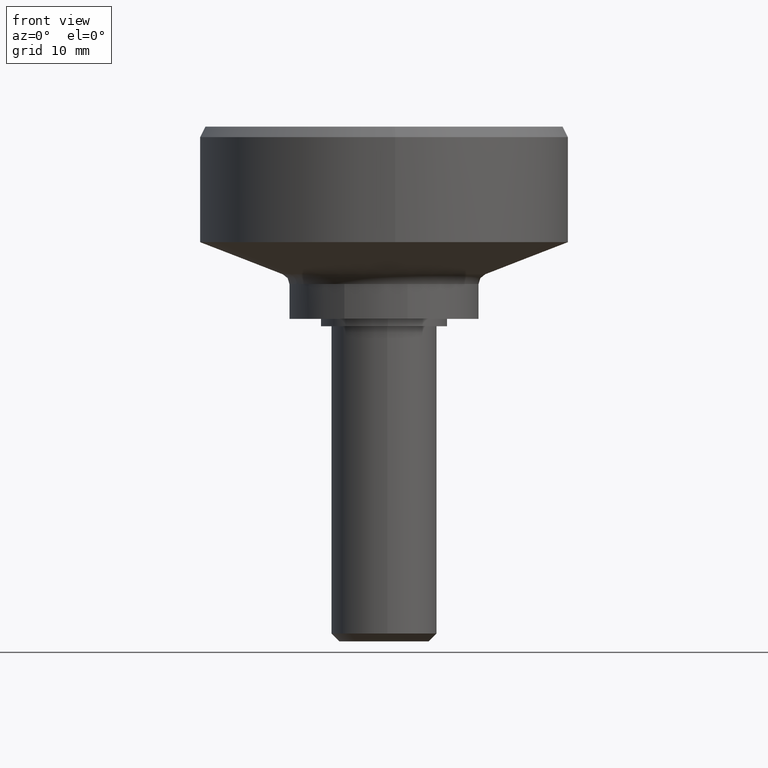
[diagram: clean part render]
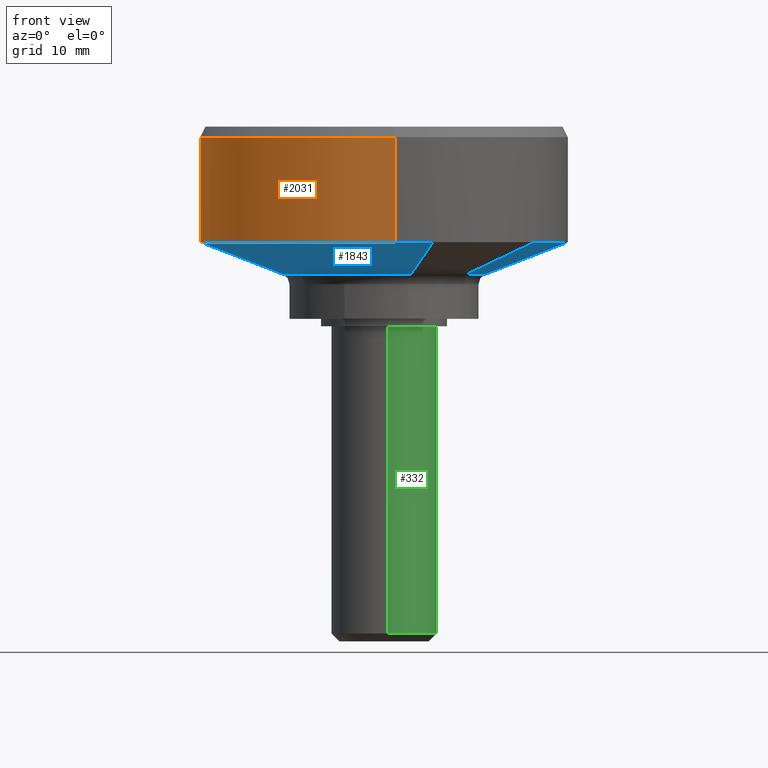
[diagram: same view with three faces highlighted in distinct colors, each labeled with its STEP entity id]
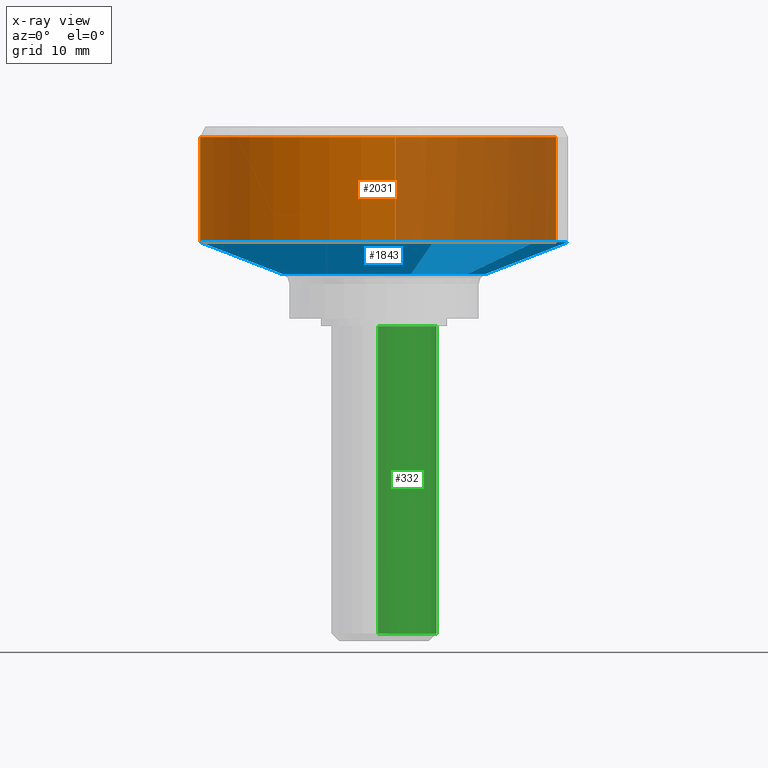
[diagram: x-ray of the same camera — body ghosted, the three highlighted faces saturated]
A machine part, front view with three faces highlighted in distinct colors.
The next image is the same camera in x-ray (body ghosted, the three faces saturated) — at least one of them is partly hidden behind the body in this view.
Their STEP definitions:

[orange] entity #2031 — the highlighted face is a freeform B-spline surface patch.
#1779=CARTESIAN_POINT('',(1.068336638387407,-17.467359755467179,8.0));
#1780=VERTEX_POINT('',#1779);
#1794=CARTESIAN_POINT('',(-17.500000000000000,0.0,8.0));
#1795=VERTEX_POINT('',#1794);
#1796=CARTESIAN_POINT('',(1.068336638387407,-17.467359755467175,8.0));
#1797=CARTESIAN_POINT('',(0.534666938039526,-17.499999999999996,8.0));
#1798=CARTESIAN_POINT('',(0.0,-17.500000000000000,8.0));
#1799=CARTESIAN_POINT('',(-17.499999999999996,-17.499999999999996,8.0));
#1800=CARTESIAN_POINT('',(-17.500000000000000,0.0,8.0));
#1808=(BOUNDED_CURVE()B_SPLINE_CURVE(2,(#1796,#1797,#1798,#1799,#1800),.UNSPECIFIED.,.F.,.U.)B_SPLINE_CURVE_WITH_KNOTS((3,2,3),(0.739333088717774,0.750000000000000,1.0),.UNSPECIFIED.)CURVE()GEOMETRIC_REPRESENTATION_ITEM()RATIONAL_B_SPLINE_CURVE((0.976072312735079,0.987502936079005,1.0,0.707106781186548,1.0))REPRESENTATION_ITEM(''));
#1809=EDGE_CURVE('',#1780,#1795,#1808,.T.);
#1811=CARTESIAN_POINT('',(16.382515417201041,6.153307127480902,8.0));
#1812=VERTEX_POINT('',#1811);
#1813=CARTESIAN_POINT('',(-17.500000000000000,0.0,8.0));
#1814=CARTESIAN_POINT('',(-17.499999999999996,17.499999999999996,8.0));
#1815=CARTESIAN_POINT('',(0.0,17.500000000000000,8.0));
#1816=CARTESIAN_POINT('',(12.120673792289830,17.499999999999996,8.0));
#1817=CARTESIAN_POINT('',(16.382515417201038,6.153307127480904,8.0));
#1825=(BOUNDED_CURVE()B_SPLINE_CURVE(2,(#1813,#1814,#1815,#1816,#1817),.UNSPECIFIED.,.F.,.U.)B_SPLINE_CURVE_WITH_KNOTS((3,2,3),(0.0,0.250000000000000,0.440284242480029),.UNSPECIFIED.)CURVE()GEOMETRIC_REPRESENTATION_ITEM()RATIONAL_B_SPLINE_CURVE((1.0,0.707106781186548,1.0,0.777068142922179,0.893499642234113))REPRESENTATION_ITEM(''));
#1826=EDGE_CURVE('',#1795,#1812,#1825,.T.);
#1907=CARTESIAN_POINT('',(16.382515411358451,6.153307143036193,18.000000000000039));
#1908=VERTEX_POINT('',#1907);
#1924=CARTESIAN_POINT('',(1.068349441870334,-17.467358972382979,17.999999999996440));
#1925=VERTEX_POINT('',#1924);
#1939=CARTESIAN_POINT('',(1.068349441870334,-17.467358972382979,17.999999999996440));
#1940=CARTESIAN_POINT('',(1.068336638387407,-17.467359755467179,8.0));
#1941=QUASI_UNIFORM_CURVE('',1,(#1939,#1940),.UNSPECIFIED.,.F.,.U.);
#1942=EDGE_CURVE('',#1925,#1780,#1941,.T.);
#1948=CARTESIAN_POINT('',(16.382515411358451,6.153307143036193,18.000000000000039));
#1949=CARTESIAN_POINT('',(16.382515417201041,6.153307127480902,8.0));
#1950=QUASI_UNIFORM_CURVE('',1,(#1948,#1949),.UNSPECIFIED.,.F.,.U.);
#1951=EDGE_CURVE('',#1908,#1812,#1950,.T.);
#1956=CARTESIAN_POINT('',(1.068349441859998,-17.467358972382669,18.250000000000000));
#1957=CARTESIAN_POINT('',(-16.399009530522669,-18.535708414242670,18.250000000000011));
#1958=CARTESIAN_POINT('',(-17.467358972382669,-1.068349441859998,18.250000000000000));
#1959=CARTESIAN_POINT('',(-18.535708414242670,16.399009530522669,18.250000000000011));
#1960=CARTESIAN_POINT('',(-1.068349441859998,17.467358972382669,18.250000000000000));
#1961=CARTESIAN_POINT('',(11.836467681553643,18.256651400213478,18.250000000000007));
#1962=CARTESIAN_POINT('',(16.382512628591503,6.153314551852513,18.250000000000000));
#1963=CARTESIAN_POINT('',(1.068349441859998,-17.467358972382669,7.743750000000000));
#1964=CARTESIAN_POINT('',(-16.399009530522669,-18.535708414242670,7.743750000000000));
#1965=CARTESIAN_POINT('',(-17.467358972382669,-1.068349441859998,7.743750000000000));
#1966=CARTESIAN_POINT('',(-18.535708414242670,16.399009530522669,7.743750000000000));
#1967=CARTESIAN_POINT('',(-1.068349441859998,17.467358972382669,7.743750000000000));
#1968=CARTESIAN_POINT('',(11.836467681553643,18.256651400213478,7.743750000000000));
#1969=CARTESIAN_POINT('',(16.382512628591503,6.153314551852513,7.743750000000000));
#1977=(BOUNDED_SURFACE()B_SPLINE_SURFACE(2,1,((#1956,#1963),(#1957,#1964),(#1958,#1965),(#1959,#1966),(#1960,#1967),(#1961,#1968),(#1962,#1969)),.UNSPECIFIED.,.F.,.F.,.U.)B_SPLINE_SURFACE_WITH_KNOTS((3,2,2,3),(2,2),(0.0,28.994949366116639,57.989898732233293,81.185858225126594),(0.0,10.506250000000010),.UNSPECIFIED.)GEOMETRIC_REPRESENTATION_ITEM()RATIONAL_B_SPLINE_SURFACE(((1.0,1.0),(0.707106781186548,0.707106781186548),(1.0,1.0),(0.707106781186548,0.707106781186548),(1.0,1.0),(0.765685424949238,0.765685424949238),(0.906274169979695,0.906274169979695)))REPRESENTATION_ITEM('')SURFACE());
#1978=CARTESIAN_POINT('',(-2.065599106506693,17.377666711363791,17.999999999997559));
#1979=VERTEX_POINT('',#1978);
#1980=CARTESIAN_POINT('',(-2.065599106506693,17.377666711363791,17.999999999997559));
#1981=CARTESIAN_POINT('',(-1.036422093921844,17.499999999999996,18.000000000000004));
#1982=CARTESIAN_POINT('',(0.0,17.500000000000000,18.0));
#1983=CARTESIAN_POINT('',(12.120673779996153,17.500000000000007,18.000000000000004));
#1984=CARTESIAN_POINT('',(16.382515411358455,6.153307143036193,18.000000000000046));
#1992=(BOUNDED_CURVE()B_SPLINE_CURVE(2,(#1980,#1981,#1982,#1983,#1984),.UNSPECIFIED.,.F.,.U.)B_SPLINE_CURVE_WITH_KNOTS((3,2,3),(0.229562473515386,0.250000000000000,0.440284242330055),.UNSPECIFIED.)CURVE()GEOMETRIC_REPRESENTATION_ITEM()RATIONAL_B_SPLINE_CURVE((0.956026754187380,0.976055948333345,1.0,0.777068143097885,0.893499642050579))REPRESENTATION_ITEM(''));
#1993=EDGE_CURVE('',#1979,#1908,#1992,.T.);
#1994=ORIENTED_EDGE('',*,*,#1993,.T.);
#1995=ORIENTED_EDGE('',*,*,#1951,.T.);
#1996=ORIENTED_EDGE('',*,*,#1826,.F.);
#1997=ORIENTED_EDGE('',*,*,#1809,.F.);
#1998=ORIENTED_EDGE('',*,*,#1942,.F.);
#1999=CARTESIAN_POINT('',(-17.500000000000000,0.0,18.0));
#2000=VERTEX_POINT('',#1999);
#2001=CARTESIAN_POINT('',(1.068349441870335,-17.467358972382982,17.999999999996444));
#2002=CARTESIAN_POINT('',(0.534673357745924,-17.500000000000007,18.000000000000004));
#2003=CARTESIAN_POINT('',(0.0,-17.500000000000000,18.0));
#2004=CARTESIAN_POINT('',(-17.499999999999996,-17.499999999999996,18.000000000000007));
#2005=CARTESIAN_POINT('',(-17.500000000000000,0.0,18.0));
#2013=(BOUNDED_CURVE()B_SPLINE_CURVE(2,(#2001,#2002,#2003,#2004,#2005),.UNSPECIFIED.,.F.,.U.)B_SPLINE_CURVE_WITH_KNOTS((3,2,3),(0.739332962241562,0.750000000000000,1.0),.UNSPECIFIED.)CURVE()GEOMETRIC_REPRESENTATION_ITEM()RATIONAL_B_SPLINE_CURVE((0.976072041672331,0.987502787902906,1.0,0.707106781186548,1.0))REPRESENTATION_ITEM(''));
#2014=EDGE_CURVE('',#1925,#2000,#2013,.T.);
#2015=ORIENTED_EDGE('',*,*,#2014,.T.);
#2016=CARTESIAN_POINT('',(-17.500000000000000,0.0,18.0));
#2017=CARTESIAN_POINT('',(-17.500000000000007,15.543054204125022,18.000000000000004));
#2018=CARTESIAN_POINT('',(-2.065599106506694,17.377666711363791,17.999999999997566));
#2026=(BOUNDED_CURVE()B_SPLINE_CURVE(2,(#2016,#2017,#2018),.UNSPECIFIED.,.F.,.U.)B_SPLINE_CURVE_WITH_KNOTS((3,3),(0.0,0.229562473515386),.UNSPECIFIED.)CURVE()GEOMETRIC_REPRESENTATION_ITEM()RATIONAL_B_SPLINE_CURVE((1.0,0.731050832853203,0.956026754187380))REPRESENTATION_ITEM(''));
#2027=EDGE_CURVE('',#2000,#1979,#2026,.T.);
#2028=ORIENTED_EDGE('',*,*,#2027,.T.);
#2029=EDGE_LOOP('',(#1994,#1995,#1996,#1997,#1998,#2015,#2028));
#2030=FACE_OUTER_BOUND('',#2029,.T.);
#2031=ADVANCED_FACE('',(#2030),#1977,.T.);

[blue] entity #1843 — the highlighted face is a freeform B-spline surface patch.
#1643=CARTESIAN_POINT('',(7.713483089271633,-5.439481947394103,4.870248094936121));
#1644=CARTESIAN_POINT('',(10.290010615862121,-1.785824908432949,4.870248094936122));
#1645=CARTESIAN_POINT('',(9.095251708345501,2.522336533126385,4.870248094936122));
#1646=CARTESIAN_POINT('',(6.572915175219116,11.617588241471886,4.870248094936123));
#1647=CARTESIAN_POINT('',(-2.522336533126385,9.095251708345501,4.870248094936122));
#1648=CARTESIAN_POINT('',(-11.617588241471886,6.572915175219116,4.870248094936123));
#1649=CARTESIAN_POINT('',(-9.095251708345501,-2.522336533126385,4.870248094936122));
#1650=CARTESIAN_POINT('',(-6.572915175219116,-11.617588241471886,4.870248094936123));
#1651=CARTESIAN_POINT('',(2.522336533126385,-9.095251708345501,4.870248094936122));
#1652=CARTESIAN_POINT('',(14.466294386905163,-10.201506408007143,8.078243797626596));
#1653=CARTESIAN_POINT('',(19.298457141946898,-3.349235170398029,8.078243797626596));
#1654=CARTESIAN_POINT('',(17.057739961721030,4.730529957575575,8.078243797626596));
#1655=CARTESIAN_POINT('',(12.327210004145458,21.788269919296603,8.078243797626596));
#1656=CARTESIAN_POINT('',(-4.730529957575575,17.057739961721030,8.078243797626596));
#1657=CARTESIAN_POINT('',(-21.788269919296603,12.327210004145458,8.078243797626596));
#1658=CARTESIAN_POINT('',(-17.057739961721030,-4.730529957575575,8.078243797626596));
#1659=CARTESIAN_POINT('',(-12.327210004145458,-21.788269919296603,8.078243797626596));
#1660=CARTESIAN_POINT('',(4.730529957575575,-17.057739961721030,8.078243797626596));
#1668=(BOUNDED_SURFACE()B_SPLINE_SURFACE(2,1,((#1643,#1652),(#1644,#1653),(#1645,#1654),(#1646,#1655),(#1647,#1656),(#1648,#1657),(#1649,#1658),(#1650,#1659),(#1651,#1660)),.UNSPECIFIED.,.F.,.F.,.U.)B_SPLINE_SURFACE_WITH_KNOTS((3,2,2,2,3),(2,2),(0.0,16.424165254425699,45.753031780185879,75.081898305946069,104.410764831706300),(0.0,8.863891572746395),.UNSPECIFIED.)GEOMETRIC_REPRESENTATION_ITEM()RATIONAL_B_SPLINE_SURFACE(((0.855662221768731,0.855662221768731),(0.835979797464467,0.835979797464467),(1.0,1.0),(0.707106781186548,0.707106781186548),(1.0,1.0),(0.707106781186548,0.707106781186548),(1.0,1.0),(0.707106781186548,0.707106781186548),(1.0,1.0)))REPRESENTATION_ITEM('')SURFACE());
#1669=CARTESIAN_POINT('',(17.500000000000000,0.0,8.0));
#1670=VERTEX_POINT('',#1669);
#1671=CARTESIAN_POINT('',(14.301591672324220,-10.085359469950420,8.000000000000135));
#1672=VERTEX_POINT('',#1671);
#1673=CARTESIAN_POINT('',(17.500000000000000,0.0,8.0));
#1674=CARTESIAN_POINT('',(17.500000000000000,-5.549841421235357,8.000000000000002));
#1675=CARTESIAN_POINT('',(14.301591672324218,-10.085359469950422,8.000000000000135));
#1683=(BOUNDED_CURVE()B_SPLINE_CURVE(2,(#1673,#1674,#1675),.UNSPECIFIED.,.F.,.U.)B_SPLINE_CURVE_WITH_KNOTS((3,3),(0.500000000000000,0.599105163479059),.UNSPECIFIED.)CURVE()GEOMETRIC_REPRESENTATION_ITEM()RATIONAL_B_SPLINE_CURVE((1.0,0.883891078670341,0.859838106378706))REPRESENTATION_ITEM(''));
#1684=EDGE_CURVE('',#1670,#1672,#1683,.T.);
#1685=ORIENTED_EDGE('',*,*,#1684,.T.);
#1686=CARTESIAN_POINT('',(7.874168664956732,-5.552796033681652,4.946583507492941));
#1687=VERTEX_POINT('',#1686);
#1688=CARTESIAN_POINT('',(7.874168664956732,-5.552796033681652,4.946583507492941));
#1689=CARTESIAN_POINT('',(14.301591672324220,-10.085359469950420,8.000000000000135));
#1690=QUASI_UNIFORM_CURVE('',1,(#1688,#1689),.UNSPECIFIED.,.F.,.U.);
#1691=EDGE_CURVE('',#1687,#1672,#1690,.T.);
#1692=ORIENTED_EDGE('',*,*,#1691,.F.);
#1693=CARTESIAN_POINT('',(9.635147946754040,0.0,4.946583507492570));
#1694=VERTEX_POINT('',#1693);
#1695=CARTESIAN_POINT('',(9.635147946754040,0.0,4.946583507492570));
#1696=CARTESIAN_POINT('',(9.635147946754040,-3.055631038569442,4.946583507492571));
#1697=CARTESIAN_POINT('',(7.874168664956732,-5.552796033681652,4.946583507492941));
#1705=(BOUNDED_CURVE()B_SPLINE_CURVE(2,(#1695,#1696,#1697),.UNSPECIFIED.,.F.,.U.)B_SPLINE_CURVE_WITH_KNOTS((3,3),(0.500000000000000,0.599105163479614),.UNSPECIFIED.)CURVE()GEOMETRIC_REPRESENTATION_ITEM()RATIONAL_B_SPLINE_CURVE((1.0,0.883891078669690,0.859838106378436))REPRESENTATION_ITEM(''));
#1706=EDGE_CURVE('',#1694,#1687,#1705,.T.);
#1707=ORIENTED_EDGE('',*,*,#1706,.F.);
#1708=CARTESIAN_POINT('',(-2.605591329318284,9.276150590447843,4.946583507416229));
#1709=VERTEX_POINT('',#1708);
#1710=CARTESIAN_POINT('',(-2.605591329318283,9.276150590447843,4.946583507416229));
#1711=CARTESIAN_POINT('',(-1.327526922478754,9.635147946754040,4.946583507492570));
#1712=CARTESIAN_POINT('',(0.0,9.635147946754040,4.946583507492570));
#1713=CARTESIAN_POINT('',(9.635147946754040,9.635147946754040,4.946583507492570));
#1714=CARTESIAN_POINT('',(9.635147946754040,0.0,4.946583507492570));
#1722=(BOUNDED_CURVE()B_SPLINE_CURVE(2,(#1710,#1711,#1712,#1713,#1714),.UNSPECIFIED.,.F.,.U.)B_SPLINE_CURVE_WITH_KNOTS((3,2,3),(0.203917489194350,0.250000000000000,0.500000000000000),.UNSPECIFIED.)CURVE()GEOMETRIC_REPRESENTATION_ITEM()RATIONAL_B_SPLINE_CURVE((0.911925557296626,0.946010980316509,1.0,0.707106781186548,1.0))REPRESENTATION_ITEM(''));
#1723=EDGE_CURVE('',#1709,#1694,#1722,.T.);
#1724=ORIENTED_EDGE('',*,*,#1723,.F.);
#1725=CARTESIAN_POINT('',(-9.635147946754040,0.0,4.946583507492570));
#1726=VERTEX_POINT('',#1725);
#1727=CARTESIAN_POINT('',(-9.635147946754040,0.0,4.946583507492570));
#1728=CARTESIAN_POINT('',(-9.635147946754040,7.301608285319745,4.946583507492570));
#1729=CARTESIAN_POINT('',(-2.605591329318283,9.276150590447843,4.946583507416229));
#1737=(BOUNDED_CURVE()B_SPLINE_CURVE(2,(#1727,#1728,#1729),.UNSPECIFIED.,.F.,.U.)B_SPLINE_CURVE_WITH_KNOTS((3,3),(0.0,0.203917489194350),.UNSPECIFIED.)CURVE()GEOMETRIC_REPRESENTATION_ITEM()RATIONAL_B_SPLINE_CURVE((1.0,0.761095800870038,0.911925557296626))REPRESENTATION_ITEM(''));
#1738=EDGE_CURVE('',#1726,#1709,#1737,.T.);
#1739=ORIENTED_EDGE('',*,*,#1738,.F.);
#1740=CARTESIAN_POINT('',(-8.913255749445995,-3.659227772237156,4.946583507254753));
#1741=VERTEX_POINT('',#1740);
#1742=CARTESIAN_POINT('',(-8.913255749445995,-3.659227772237156,4.946583507254753));
#1743=CARTESIAN_POINT('',(-9.635147946754040,-1.900821307068708,4.946583507492570));
#1744=CARTESIAN_POINT('',(-9.635147946754040,0.0,4.946583507492570));
#1752=(BOUNDED_CURVE()B_SPLINE_CURVE(2,(#1742,#1743,#1744),.UNSPECIFIED.,.F.,.U.)B_SPLINE_CURVE_WITH_KNOTS((3,3),(0.935520056551352,1.0),.UNSPECIFIED.)CURVE()GEOMETRIC_REPRESENTATION_ITEM()RATIONAL_B_SPLINE_CURVE((0.887882137081486,0.924457047257664,1.0))REPRESENTATION_ITEM(''));
#1753=EDGE_CURVE('',#1741,#1726,#1752,.T.);
#1754=ORIENTED_EDGE('',*,*,#1753,.F.);
#1755=CARTESIAN_POINT('',(2.574881290639477,-9.284721982651149,4.946583507496035));
#1756=VERTEX_POINT('',#1755);
#1757=CARTESIAN_POINT('',(2.574881290639477,-9.284721982651149,4.946583507496035));
#1758=CARTESIAN_POINT('',(1.311286085682746,-9.635147946754040,4.946583507492570));
#1759=CARTESIAN_POINT('',(0.0,-9.635147946754040,4.946583507492570));
#1760=CARTESIAN_POINT('',(-6.459915053708568,-9.635147946754040,4.946583507492570));
#1761=CARTESIAN_POINT('',(-8.913255749445995,-3.659227772237156,4.946583507254753));
#1769=(BOUNDED_CURVE()B_SPLINE_CURVE(2,(#1757,#1758,#1759,#1760,#1761),.UNSPECIFIED.,.F.,.U.)B_SPLINE_CURVE_WITH_KNOTS((3,2,3),(0.704451173363482,0.750000000000000,0.935520056551351),.UNSPECIFIED.)CURVE()GEOMETRIC_REPRESENTATION_ITEM()RATIONAL_B_SPLINE_CURVE((0.912717717215622,0.946636230213018,1.0,0.782649733928885,0.887882137081485))REPRESENTATION_ITEM(''));
#1770=EDGE_CURVE('',#1756,#1741,#1769,.T.);
#1771=ORIENTED_EDGE('',*,*,#1770,.F.);
#1772=CARTESIAN_POINT('',(4.676671581391214,-16.863532931147560,8.000000000001004));
#1773=VERTEX_POINT('',#1772);
#1774=CARTESIAN_POINT('',(2.574881290639477,-9.284721982651149,4.946583507496035));
#1775=CARTESIAN_POINT('',(4.676671581391214,-16.863532931147560,8.000000000001004));
#1776=QUASI_UNIFORM_CURVE('',1,(#1774,#1775),.UNSPECIFIED.,.F.,.U.);
#1777=EDGE_CURVE('',#1756,#1773,#1776,.T.);
#1778=ORIENTED_EDGE('',*,*,#1777,.T.);
#1779=CARTESIAN_POINT('',(1.068336638387407,-17.467359755467179,8.0));
#1780=VERTEX_POINT('',#1779);
#1781=CARTESIAN_POINT('',(4.676671581391215,-16.863532931147557,8.000000000001004));
#1782=CARTESIAN_POINT('',(2.904236600074928,-17.355072654218887,8.0));
#1783=CARTESIAN_POINT('',(1.068336638387407,-17.467359755467175,8.0));
#1791=(BOUNDED_CURVE()B_SPLINE_CURVE(2,(#1781,#1782,#1783),.UNSPECIFIED.,.F.,.U.)B_SPLINE_CURVE_WITH_KNOTS((3,3),(0.704451173365610,0.739333088717774),.UNSPECIFIED.)CURVE()GEOMETRIC_REPRESENTATION_ITEM()RATIONAL_B_SPLINE_CURVE((0.912717717218790,0.938692979078326,0.976072312735079))REPRESENTATION_ITEM(''));
#1792=EDGE_CURVE('',#1773,#1780,#1791,.T.);
#1793=ORIENTED_EDGE('',*,*,#1792,.T.);
#1794=CARTESIAN_POINT('',(-17.500000000000000,0.0,8.0));
#1795=VERTEX_POINT('',#1794);
#1796=CARTESIAN_POINT('',(1.068336638387407,-17.467359755467175,8.0));
#1797=CARTESIAN_POINT('',(0.534666938039526,-17.499999999999996,8.0));
#1798=CARTESIAN_POINT('',(0.0,-17.500000000000000,8.0));
#1799=CARTESIAN_POINT('',(-17.499999999999996,-17.499999999999996,8.0));
#1800=CARTESIAN_POINT('',(-17.500000000000000,0.0,8.0));
#1808=(BOUNDED_CURVE()B_SPLINE_CURVE(2,(#1796,#1797,#1798,#1799,#1800),.UNSPECIFIED.,.F.,.U.)B_SPLINE_CURVE_WITH_KNOTS((3,2,3),(0.739333088717774,0.750000000000000,1.0),.UNSPECIFIED.)CURVE()GEOMETRIC_REPRESENTATION_ITEM()RATIONAL_B_SPLINE_CURVE((0.976072312735079,0.987502936079005,1.0,0.707106781186548,1.0))REPRESENTATION_ITEM(''));
#1809=EDGE_CURVE('',#1780,#1795,#1808,.T.);
#1810=ORIENTED_EDGE('',*,*,#1809,.T.);
#1811=CARTESIAN_POINT('',(16.382515417201041,6.153307127480902,8.0));
#1812=VERTEX_POINT('',#1811);
#1813=CARTESIAN_POINT('',(-17.500000000000000,0.0,8.0));
#1814=CARTESIAN_POINT('',(-17.499999999999996,17.499999999999996,8.0));
#1815=CARTESIAN_POINT('',(0.0,17.500000000000000,8.0));
#1816=CARTESIAN_POINT('',(12.120673792289830,17.499999999999996,8.0));
#1817=CARTESIAN_POINT('',(16.382515417201038,6.153307127480904,8.0));
#1825=(BOUNDED_CURVE()B_SPLINE_CURVE(2,(#1813,#1814,#1815,#1816,#1817),.UNSPECIFIED.,.F.,.U.)B_SPLINE_CURVE_WITH_KNOTS((3,2,3),(0.0,0.250000000000000,0.440284242480029),.UNSPECIFIED.)CURVE()GEOMETRIC_REPRESENTATION_ITEM()RATIONAL_B_SPLINE_CURVE((1.0,0.707106781186548,1.0,0.777068142922179,0.893499642234113))REPRESENTATION_ITEM(''));
#1826=EDGE_CURVE('',#1795,#1812,#1825,.T.);
#1827=ORIENTED_EDGE('',*,*,#1826,.T.);
#1828=CARTESIAN_POINT('',(16.382515417201038,6.153307127480904,8.0));
#1829=CARTESIAN_POINT('',(17.500000000000000,3.178125159983088,8.0));
#1830=CARTESIAN_POINT('',(17.500000000000000,0.0,8.0));
#1838=(BOUNDED_CURVE()B_SPLINE_CURVE(2,(#1828,#1829,#1830),.UNSPECIFIED.,.F.,.U.)B_SPLINE_CURVE_WITH_KNOTS((3,3),(0.440284242480029,0.500000000000000),.UNSPECIFIED.)CURVE()GEOMETRIC_REPRESENTATION_ITEM()RATIONAL_B_SPLINE_CURVE((0.893499642234113,0.930038638264369,1.0))REPRESENTATION_ITEM(''));
#1839=EDGE_CURVE('',#1812,#1670,#1838,.T.);
#1840=ORIENTED_EDGE('',*,*,#1839,.T.);
#1841=EDGE_LOOP('',(#1685,#1692,#1707,#1724,#1739,#1754,#1771,#1778,#1793,#1810,#1827,#1840));
#1842=FACE_OUTER_BOUND('',#1841,.T.);
#1843=ADVANCED_FACE('',(#1842),#1668,.T.);

[green] entity #332 — the highlighted face is a freeform B-spline surface patch.
#66=CARTESIAN_POINT('',(-0.590171173322414,4.965047631813741,-29.250000000000000));
#67=VERTEX_POINT('',#66);
#68=CARTESIAN_POINT('',(4.215200244301513,2.689253967267243,-29.249999999997780));
#69=VERTEX_POINT('',#68);
#70=CARTESIAN_POINT('',(-0.590171173322414,4.965047631813741,-29.250000000000000));
#71=CARTESIAN_POINT('',(-0.296120598298581,5.000000000000001,-29.250000000000004));
#72=CARTESIAN_POINT('',(0.0,5.0,-29.250000000000000));
#73=CARTESIAN_POINT('',(2.740968280019508,5.0,-29.250000000000000));
#74=CARTESIAN_POINT('',(4.215200244301513,2.689253967267243,-29.249999999997790));
#82=(BOUNDED_CURVE()B_SPLINE_CURVE(2,(#70,#71,#72,#73,#74),.UNSPECIFIED.,.F.,.U.)B_SPLINE_CURVE_WITH_KNOTS((3,2,3),(0.229562473513015,0.250000000000000,0.407950112625032),.UNSPECIFIED.)CURVE()GEOMETRIC_REPRESENTATION_ITEM()RATIONAL_B_SPLINE_CURVE((0.956026754182732,0.976055948330567,1.0,0.814949932405229,0.863729296953368))REPRESENTATION_ITEM(''));
#83=EDGE_CURVE('',#67,#69,#82,.T.);
#126=CARTESIAN_POINT('',(0.392295478792383,-4.984586668673583,-29.249999999980059));
#127=VERTEX_POINT('',#126);
#133=CARTESIAN_POINT('',(0.305242697723801,-4.990673992106306,-29.250000000000000));
#134=VERTEX_POINT('',#133);
#135=CARTESIAN_POINT('',(0.392295478792383,-4.984586668673583,-29.249999999980059));
#136=CARTESIAN_POINT('',(0.348795649991449,-4.988010179429461,-29.250000000000000));
#137=CARTESIAN_POINT('',(0.305242697723801,-4.990673992106306,-29.249999999999996));
#145=(BOUNDED_CURVE()B_SPLINE_CURVE(2,(#135,#136,#137),.UNSPECIFIED.,.F.,.U.)B_SPLINE_CURVE_WITH_KNOTS((3,3),(0.736331300622340,0.739332962238544),.UNSPECIFIED.)CURVE()GEOMETRIC_REPRESENTATION_ITEM()RATIONAL_B_SPLINE_CURVE((0.969723356150056,0.972855475550604,0.976072041665864))REPRESENTATION_ITEM(''));
#146=EDGE_CURVE('',#127,#134,#145,.T.);
#199=CARTESIAN_POINT('',(5.0,0.0,-29.250000000000000));
#200=VERTEX_POINT('',#199);
#201=CARTESIAN_POINT('',(4.215200244301513,2.689253967267244,-29.249999999997787));
#202=CARTESIAN_POINT('',(5.0,1.459140276941422,-29.250000000000004));
#203=CARTESIAN_POINT('',(5.0,0.0,-29.250000000000000));
#211=(BOUNDED_CURVE()B_SPLINE_CURVE(2,(#201,#202,#203),.UNSPECIFIED.,.F.,.U.)B_SPLINE_CURVE_WITH_KNOTS((3,3),(0.407950112625032,0.500000000000000),.UNSPECIFIED.)CURVE()GEOMETRIC_REPRESENTATION_ITEM()RATIONAL_B_SPLINE_CURVE((0.863729296953368,0.892156848781319,1.0))REPRESENTATION_ITEM(''));
#212=EDGE_CURVE('',#69,#200,#211,.T.);
#214=CARTESIAN_POINT('',(5.0,0.0,-29.250000000000000));
#215=CARTESIAN_POINT('',(5.0,-4.621952458009066,-29.250000000000000));
#216=CARTESIAN_POINT('',(0.392295478792383,-4.984586668673583,-29.249999999980062));
#224=(BOUNDED_CURVE()B_SPLINE_CURVE(2,(#214,#215,#216),.UNSPECIFIED.,.F.,.U.)B_SPLINE_CURVE_WITH_KNOTS((3,3),(0.500000000000000,0.736331300622341),.UNSPECIFIED.)CURVE()GEOMETRIC_REPRESENTATION_ITEM()RATIONAL_B_SPLINE_CURVE((1.0,0.723120658617411,0.969723356150058))REPRESENTATION_ITEM(''));
#225=EDGE_CURVE('',#200,#127,#224,.T.);
#260=CARTESIAN_POINT('',(-0.590171173283792,4.965047631818332,0.731250000000001));
#261=CARTESIAN_POINT('',(-0.448073643189888,4.981938077243028,0.731250000000001));
#262=CARTESIAN_POINT('',(-0.305242697674285,4.990673992109334,0.731250000000001));
#263=CARTESIAN_POINT('',(4.685431294435048,5.295916689783620,0.731250000000001));
#264=CARTESIAN_POINT('',(4.990673992109334,0.305242697674285,0.731250000000001));
#265=CARTESIAN_POINT('',(5.295916689783620,-4.685431294435048,0.731250000000001));
#266=CARTESIAN_POINT('',(0.305242697674285,-4.990673992109334,0.731250000000001));
#267=CARTESIAN_POINT('',(-0.590171173283792,4.965047631818332,-29.999531250000011));
#268=CARTESIAN_POINT('',(-0.448073643189888,4.981938077243028,-29.999531250000000));
#269=CARTESIAN_POINT('',(-0.305242697674285,4.990673992109334,-29.999531250000000));
#270=CARTESIAN_POINT('',(4.685431294435048,5.295916689783620,-29.999531250000004));
#271=CARTESIAN_POINT('',(4.990673992109334,0.305242697674285,-29.999531250000000));
#272=CARTESIAN_POINT('',(5.295916689783620,-4.685431294435048,-29.999531250000004));
#273=CARTESIAN_POINT('',(0.305242697674285,-4.990673992109334,-29.999531250000000));
#281=(BOUNDED_SURFACE()B_SPLINE_SURFACE(2,1,((#260,#267),(#261,#268),(#262,#269),(#263,#270),(#264,#271),(#265,#272),(#266,#273)),.UNSPECIFIED.,.F.,.F.,.U.)B_SPLINE_SURFACE_WITH_KNOTS((3,2,2,3),(2,2),(0.0,0.331370849898476,8.615642097360375,16.899913344822270),(0.0,30.730781250000010),.UNSPECIFIED.)GEOMETRIC_REPRESENTATION_ITEM()RATIONAL_B_SPLINE_SURFACE(((0.977505800795127,0.977505800795127),(0.988284271247462,0.988284271247462),(1.0,1.0),(0.707106781186548,0.707106781186548),(1.0,1.0),(0.707106781186548,0.707106781186548),(1.0,1.0)))REPRESENTATION_ITEM('')SURFACE());
#282=ORIENTED_EDGE('',*,*,#83,.F.);
#283=CARTESIAN_POINT('',(-0.590171173322414,4.965047631813741,1.022194E-015));
#284=VERTEX_POINT('',#283);
#285=CARTESIAN_POINT('',(-0.590171173322414,4.965047631813741,1.022194E-015));
#286=CARTESIAN_POINT('',(-0.590171173322414,4.965047631813741,-29.250000000000000));
#287=QUASI_UNIFORM_CURVE('',1,(#285,#286),.UNSPECIFIED.,.F.,.U.);
#288=EDGE_CURVE('',#284,#67,#287,.T.);
#289=ORIENTED_EDGE('',*,*,#288,.F.);
#290=CARTESIAN_POINT('',(5.0,0.0,0.0));
#291=VERTEX_POINT('',#290);
#292=CARTESIAN_POINT('',(-0.590171173322414,4.965047631813741,1.022194E-015));
#293=CARTESIAN_POINT('',(-0.296120598298581,5.0,0.0));
#294=CARTESIAN_POINT('',(0.0,5.0,0.0));
#295=CARTESIAN_POINT('',(5.000000000000001,5.000000000000001,0.0));
#296=CARTESIAN_POINT('',(5.0,0.0,0.0));
#304=(BOUNDED_CURVE()B_SPLINE_CURVE(2,(#292,#293,#294,#295,#296),.UNSPECIFIED.,.F.,.U.)B_SPLINE_CURVE_WITH_KNOTS((3,2,3),(0.229562473513015,0.250000000000000,0.500000000000000),.UNSPECIFIED.)CURVE()GEOMETRIC_REPRESENTATION_ITEM()RATIONAL_B_SPLINE_CURVE((0.956026754182732,0.976055948330567,1.0,0.707106781186548,1.0))REPRESENTATION_ITEM(''));
#305=EDGE_CURVE('',#284,#291,#304,.T.);
#306=ORIENTED_EDGE('',*,*,#305,.T.);
#307=CARTESIAN_POINT('',(0.305242697723802,-4.990673992106306,1.054712E-015));
#308=VERTEX_POINT('',#307);
#309=CARTESIAN_POINT('',(5.0,0.0,0.0));
#310=CARTESIAN_POINT('',(5.000000000000001,-4.703530334434933,0.0));
#311=CARTESIAN_POINT('',(0.305242697723802,-4.990673992106306,1.054712E-015));
#319=(BOUNDED_CURVE()B_SPLINE_CURVE(2,(#309,#310,#311),.UNSPECIFIED.,.F.,.U.)B_SPLINE_CURVE_WITH_KNOTS((3,3),(0.500000000000000,0.739332962238543),.UNSPECIFIED.)CURVE()GEOMETRIC_REPRESENTATION_ITEM()RATIONAL_B_SPLINE_CURVE((1.0,0.719603993287179,0.976072041665861))REPRESENTATION_ITEM(''));
#320=EDGE_CURVE('',#291,#308,#319,.T.);
#321=ORIENTED_EDGE('',*,*,#320,.T.);
#322=CARTESIAN_POINT('',(0.305242697723802,-4.990673992106306,1.054712E-015));
#323=CARTESIAN_POINT('',(0.305242697723801,-4.990673992106306,-29.250000000000000));
#324=QUASI_UNIFORM_CURVE('',1,(#322,#323),.UNSPECIFIED.,.F.,.U.);
#325=EDGE_CURVE('',#308,#134,#324,.T.);
#326=ORIENTED_EDGE('',*,*,#325,.T.);
#327=ORIENTED_EDGE('',*,*,#146,.F.);
#328=ORIENTED_EDGE('',*,*,#225,.F.);
#329=ORIENTED_EDGE('',*,*,#212,.F.);
#330=EDGE_LOOP('',(#282,#289,#306,#321,#326,#327,#328,#329));
#331=FACE_OUTER_BOUND('',#330,.T.);
#332=ADVANCED_FACE('',(#331),#281,.T.);